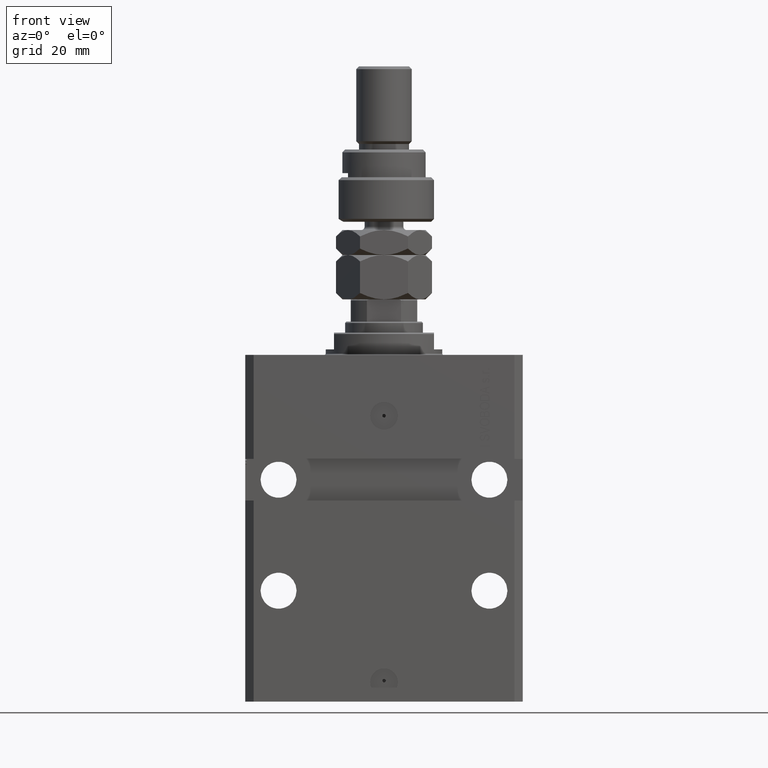
[diagram: clean part render]
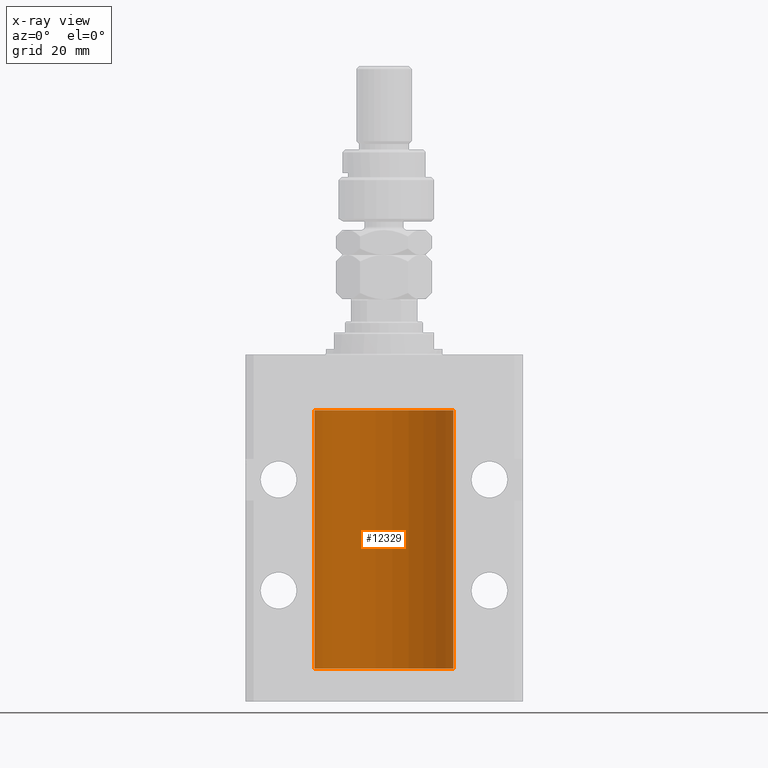
[diagram: x-ray — body ghosted, one internal face saturated and labeled with its STEP entity id]
A machine part, front view, then the same camera in x-ray: the body is ghosted and one INTERNAL B-rep face — a face not visible from any outside direction — is saturated and labeled: STEP entity #12329.
In plain terms, the highlighted cylindrical surface (partial cylindrical patch) has radius 25 mm, axis along (0, 0, 1).
Its self-contained STEP definition (entity closure, byte-faithful):
#92 = CARTESIAN_POINT ( 'NONE',  ( 0.000000000000000000, 0.000000000000000000, -20.00000000000000355 ) ) ;
#140 = CARTESIAN_POINT ( 'NONE',  ( 24.99218627891525557, 0.6250000000003174128, -25.16310615504829329 ) ) ;
#169 = VERTEX_POINT ( 'NONE', #40070 ) ;
#472 = LINE ( 'NONE', #43564, #35933 ) ;
#845 = CARTESIAN_POINT ( 'NONE',  ( 25.00000000000000000, -2.424731304940744339E-15, -111.1250000000000000 ) ) ;
#1534 = DIRECTION ( 'NONE',  ( 0.000000000000000000, 0.000000000000000000, 1.000000000000000000 ) ) ;
#1865 = EDGE_LOOP ( 'NONE', ( #25515, #36180, #38203, #29130, #16364, #35632, #6833, #42784, #25384, #17124 ) ) ;
#2503 = EDGE_CURVE ( 'NONE', #23149, #23581, #3153, .T. ) ;
#2778 = CARTESIAN_POINT ( 'NONE',  ( 25.00000000000008171, 3.486950403907965962E-13, -109.8749999999967315 ) ) ;
#2924 = CYLINDRICAL_SURFACE ( 'NONE', #40703, 25.00000000000000000 ) ;
#2961 = DIRECTION ( 'NONE',  ( 1.000000000000000000, 0.000000000000000000, 0.000000000000000000 ) ) ;
#3153 = LINE ( 'NONE', #50378, #47212 ) ;
#3504 = CARTESIAN_POINT ( 'NONE',  ( 24.99218627891505307, 0.6250000000082325258, -24.99999999999907629 ) ) ;
#3823 = CARTESIAN_POINT ( 'NONE',  ( 25.00000000000000000, -2.424731304940744339E-15, -111.1250000000000000 ) ) ;
#4012 = CARTESIAN_POINT ( 'NONE',  ( 24.99957883295564187, 0.1636780489658729298, -25.60872961334235143 ) ) ;
#5483 = CIRCLE ( 'NONE', #34427, 25.00000000000000000 ) ;
#6608 = CARTESIAN_POINT ( 'NONE',  ( 24.99999999999999645, 0.1631302137355182535, -24.37500000000015277 ) ) ;
#6737 = CARTESIAN_POINT ( 'NONE',  ( 24.99218627891526268, 0.6249999999996124211, -110.3369677794013626 ) ) ;
#6833 = ORIENTED_EDGE ( 'NONE', *, *, #10600, .T. ) ;
#7140 = CARTESIAN_POINT ( 'NONE',  ( 25.00000000000000000, 0.000000000000000000, -113.0999999999999943 ) ) ;
#7788 = B_SPLINE_CURVE_WITH_KNOTS ( 'NONE', 3,
 ( #845, #29211, #48592, #16570, #40564, #32308, #48069, #36702 ),
 .UNSPECIFIED., .F., .F.,
 ( 4, 2, 2, 4 ),
 ( 2.356374505740030593E-18, 0.0002443193446654823016, 0.0004886386893309623263, 0.0009772773786619218337 ),
 .UNSPECIFIED. ) ;
#7870 = B_SPLINE_CURVE_WITH_KNOTS ( 'NONE', 3,
 ( #18980, #34723, #4012, #35473, #23352, #34478, #140, #3504 ),
 .UNSPECIFIED., .F., .F.,
 ( 4, 2, 2, 4 ),
 ( 3.236698380392818496E-18, 0.0002443193446654800247, 0.0004886386893309567969, 0.0009772773786619174969 ),
 .UNSPECIFIED. ) ;
#9008 = VERTEX_POINT ( 'NONE', #12178 ) ;
#9804 = EDGE_CURVE ( 'NONE', #9008, #25058, #41148, .T. ) ;
#10147 = DIRECTION ( 'NONE',  ( 1.000000000000000000, 0.000000000000000000, 0.000000000000000000 ) ) ;
#10600 = EDGE_CURVE ( 'NONE', #29114, #24369, #7870, .T. ) ;
#10667 = CARTESIAN_POINT ( 'NONE',  ( 25.00000000000000000, 0.000000000000000000, -113.0999999999999943 ) ) ;
#11756 = LINE ( 'NONE', #7140, #49969 ) ;
#12178 = CARTESIAN_POINT ( 'NONE',  ( 24.99218627891505307, 0.6250000000082391871, -110.4999999999990763 ) ) ;
#12329 = ADVANCED_FACE ( 'NONE', ( #46039 ), #2924, .F. ) ;
#12877 = EDGE_CURVE ( 'NONE', #37830, #23149, #38238, .T. ) ;
#12988 = CARTESIAN_POINT ( 'NONE',  ( -25.00000000000000000, 3.061616997868383043E-15, -20.00000000000000355 ) ) ;
#14491 = CARTESIAN_POINT ( 'NONE',  ( 24.99403021173655404, 0.5586305782632625672, -110.1747611144148635 ) ) ;
#14615 = CARTESIAN_POINT ( 'NONE',  ( 25.00000000000000000, 0.000000000000000000, -113.0999999999999943 ) ) ;
#14983 = CARTESIAN_POINT ( 'NONE',  ( 25.00000000000008171, 3.486950403907965962E-13, -109.8749999999967315 ) ) ;
#15098 = CARTESIAN_POINT ( 'NONE',  ( 24.99218627891505307, 0.6250000000082325258, -24.99999999999907629 ) ) ;
#15569 = CARTESIAN_POINT ( 'NONE',  ( 24.99218627891505307, 0.6250000000082325258, -24.99999999999907629 ) ) ;
#16364 = ORIENTED_EDGE ( 'NONE', *, *, #9804, .T. ) ;
#16570 = CARTESIAN_POINT ( 'NONE',  ( 24.99812887437770570, 0.3150953964769092064, -111.0459460934856821 ) ) ;
#17124 = ORIENTED_EDGE ( 'NONE', *, *, #47378, .T. ) ;
#18107 = CARTESIAN_POINT ( 'NONE',  ( 24.99999999999999645, 0.1631302137355208348, -109.8750000000001563 ) ) ;
#18736 = EDGE_CURVE ( 'NONE', #24369, #169, #35558, .T. ) ;
#18980 = CARTESIAN_POINT ( 'NONE',  ( 25.00000000000000000, 2.149100713798383821E-15, -25.62500000000000355 ) ) ;
#19172 = EDGE_CURVE ( 'NONE', #38463, #9008, #7788, .T. ) ;
#20419 = EDGE_CURVE ( 'NONE', #169, #25126, #472, .T. ) ;
#20603 = EDGE_CURVE ( 'NONE', #37830, #38463, #11756, .T. ) ;
#22341 = CARTESIAN_POINT ( 'NONE',  ( 25.00000000000008171, 3.486950283966777142E-13, -24.37499999999673150 ) ) ;
#23149 = VERTEX_POINT ( 'NONE', #26465 ) ;
#23352 = CARTESIAN_POINT ( 'NONE',  ( 24.99711042419772156, 0.3844422150124102711, -25.49948233212518289 ) ) ;
#23581 = VERTEX_POINT ( 'NONE', #12988 ) ;
#24369 = VERTEX_POINT ( 'NONE', #15569 ) ;
#24496 = CARTESIAN_POINT ( 'NONE',  ( 0.000000000000000000, 0.000000000000000000, -113.0999999999999943 ) ) ;
#25058 = VERTEX_POINT ( 'NONE', #2778 ) ;
#25126 = VERTEX_POINT ( 'NONE', #49261 ) ;
#25384 = ORIENTED_EDGE ( 'NONE', *, *, #20419, .T. ) ;
#25515 = ORIENTED_EDGE ( 'NONE', *, *, #2503, .F. ) ;
#26105 = CARTESIAN_POINT ( 'NONE',  ( 24.99218627891505307, 0.6250000000082391871, -110.4999999999990763 ) ) ;
#26223 = CARTESIAN_POINT ( 'NONE',  ( 24.99218627891526268, 0.6249999999996038724, -24.83696777940135192 ) ) ;
#26276 = DIRECTION ( 'NONE',  ( 1.000000000000000000, 0.000000000000000000, 0.000000000000000000 ) ) ;
#26465 = CARTESIAN_POINT ( 'NONE',  ( -25.00000000000000000, 3.061616997868383043E-15, -113.0999999999999943 ) ) ;
#26467 = CARTESIAN_POINT ( 'NONE',  ( 24.99815573945175373, 0.3253059702579643164, -24.44140848432692081 ) ) ;
#26946 = VECTOR ( 'NONE', #33636, 1000.000000000000000 ) ;
#27001 = DIRECTION ( 'NONE',  ( -0.000000000000000000, -0.000000000000000000, 1.000000000000000000 ) ) ;
#29114 = VERTEX_POINT ( 'NONE', #38557 ) ;
#29130 = ORIENTED_EDGE ( 'NONE', *, *, #19172, .T. ) ;
#29211 = CARTESIAN_POINT ( 'NONE',  ( 25.00000000000000355, 0.08261259269783381709, -111.1250000000000142 ) ) ;
#29741 = DIRECTION ( 'NONE',  ( -0.000000000000000000, -0.000000000000000000, 1.000000000000000000 ) ) ;
#30019 = CARTESIAN_POINT ( 'NONE',  ( 0.000000000000000000, 0.000000000000000000, -113.0999999999999943 ) ) ;
#32308 = CARTESIAN_POINT ( 'NONE',  ( 24.99405112861447265, 0.5574133879603476727, -110.8263877786898064 ) ) ;
#33636 = DIRECTION ( 'NONE',  ( -0.000000000000000000, -0.000000000000000000, 1.000000000000000000 ) ) ;
#34343 = CARTESIAN_POINT ( 'NONE',  ( 24.99815573945175373, 0.3253059702579679247, -109.9414084843269279 ) ) ;
#34427 = AXIS2_PLACEMENT_3D ( 'NONE', #92, #34431, #2961 ) ;
#34431 = DIRECTION ( 'NONE',  ( 0.000000000000000000, 0.000000000000000000, 1.000000000000000000 ) ) ;
#34478 = CARTESIAN_POINT ( 'NONE',  ( 24.99405112861446909, 0.5574133879603399011, -25.32638777868982416 ) ) ;
#34723 = CARTESIAN_POINT ( 'NONE',  ( 25.00000000000000355, 0.08261259269783410852, -25.62500000000000355 ) ) ;
#35473 = CARTESIAN_POINT ( 'NONE',  ( 24.99812887437769504, 0.3150953964769009352, -25.54594609348566436 ) ) ;
#35558 = B_SPLINE_CURVE_WITH_KNOTS ( 'NONE', 3,
 ( #15098, #26223, #50234, #26467, #6608, #22341 ),
 .UNSPECIFIED., .F., .F.,
 ( 4, 2, 4 ),
 ( 0.0009772773786619174969, 0.001465694572771606211, 0.001954111766881294707 ),
 .UNSPECIFIED. ) ;
#35632 = ORIENTED_EDGE ( 'NONE', *, *, #49476, .T. ) ;
#35933 = VECTOR ( 'NONE', #42557, 1000.000000000000000 ) ;
#36180 = ORIENTED_EDGE ( 'NONE', *, *, #12877, .F. ) ;
#36702 = CARTESIAN_POINT ( 'NONE',  ( 24.99218627891505307, 0.6250000000082391871, -110.4999999999990763 ) ) ;
#37830 = VERTEX_POINT ( 'NONE', #14615 ) ;
#38203 = ORIENTED_EDGE ( 'NONE', *, *, #20603, .T. ) ;
#38238 = CIRCLE ( 'NONE', #41518, 25.00000000000000000 ) ;
#38463 = VERTEX_POINT ( 'NONE', #3823 ) ;
#38557 = CARTESIAN_POINT ( 'NONE',  ( 25.00000000000000000, 2.149100713798383821E-15, -25.62500000000000355 ) ) ;
#40070 = CARTESIAN_POINT ( 'NONE',  ( 25.00000000000008171, 3.486950283966777142E-13, -24.37499999999673150 ) ) ;
#40564 = CARTESIAN_POINT ( 'NONE',  ( 24.99711042419772511, 0.3844422150124162108, -110.9994823321251971 ) ) ;
#40703 = AXIS2_PLACEMENT_3D ( 'NONE', #30019, #45529, #10147 ) ;
#41148 = B_SPLINE_CURVE_WITH_KNOTS ( 'NONE', 3,
 ( #26105, #6737, #14491, #34343, #18107, #14983 ),
 .UNSPECIFIED., .F., .F.,
 ( 4, 2, 4 ),
 ( 0.0009772773786619218337, 0.001465694572771605777, 0.001954111766881289937 ),
 .UNSPECIFIED. ) ;
#41518 = AXIS2_PLACEMENT_3D ( 'NONE', #24496, #1534, #26276 ) ;
#42557 = DIRECTION ( 'NONE',  ( -0.000000000000000000, -0.000000000000000000, 1.000000000000000000 ) ) ;
#42784 = ORIENTED_EDGE ( 'NONE', *, *, #18736, .T. ) ;
#43564 = CARTESIAN_POINT ( 'NONE',  ( 25.00000000000000000, 0.000000000000000000, -113.0999999999999943 ) ) ;
#45529 = DIRECTION ( 'NONE',  ( -0.000000000000000000, -0.000000000000000000, 1.000000000000000000 ) ) ;
#46039 = FACE_OUTER_BOUND ( 'NONE', #1865, .T. ) ;
#47212 = VECTOR ( 'NONE', #29741, 1000.000000000000000 ) ;
#47378 = EDGE_CURVE ( 'NONE', #25126, #23581, #5483, .T. ) ;
#48069 = CARTESIAN_POINT ( 'NONE',  ( 24.99218627891524136, 0.6250000000003219647, -110.6631061550482826 ) ) ;
#48592 = CARTESIAN_POINT ( 'NONE',  ( 24.99957883295564187, 0.1636780489658792026, -111.1087296133423479 ) ) ;
#49261 = CARTESIAN_POINT ( 'NONE',  ( 25.00000000000000000, 0.000000000000000000, -20.00000000000000355 ) ) ;
#49476 = EDGE_CURVE ( 'NONE', #25058, #29114, #50412, .T. ) ;
#49969 = VECTOR ( 'NONE', #27001, 1000.000000000000000 ) ;
#50234 = CARTESIAN_POINT ( 'NONE',  ( 24.99403021173655404, 0.5586305782632567940, -24.67476111441487063 ) ) ;
#50378 = CARTESIAN_POINT ( 'NONE',  ( -25.00000000000000000, 3.061616997868383043E-15, -113.0999999999999943 ) ) ;
#50412 = LINE ( 'NONE', #10667, #26946 ) ;